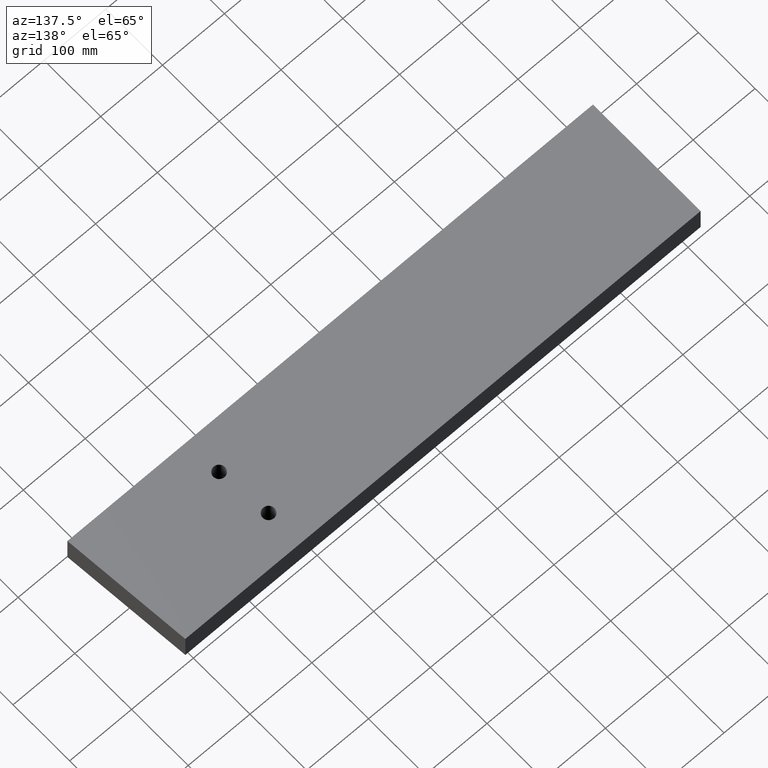
[diagram: clean part render]
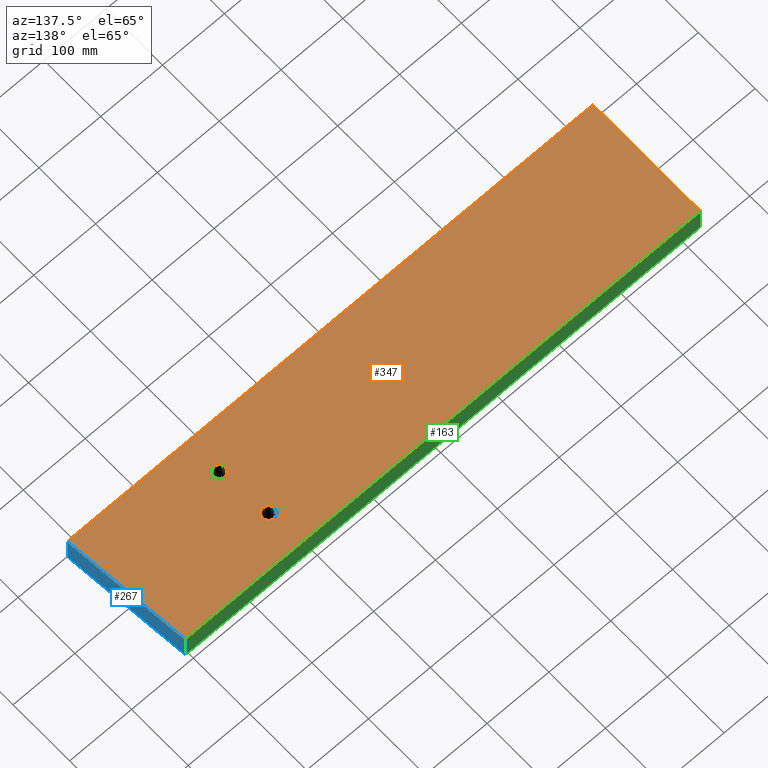
[diagram: same view with three faces highlighted in distinct colors, each labeled with its STEP entity id]
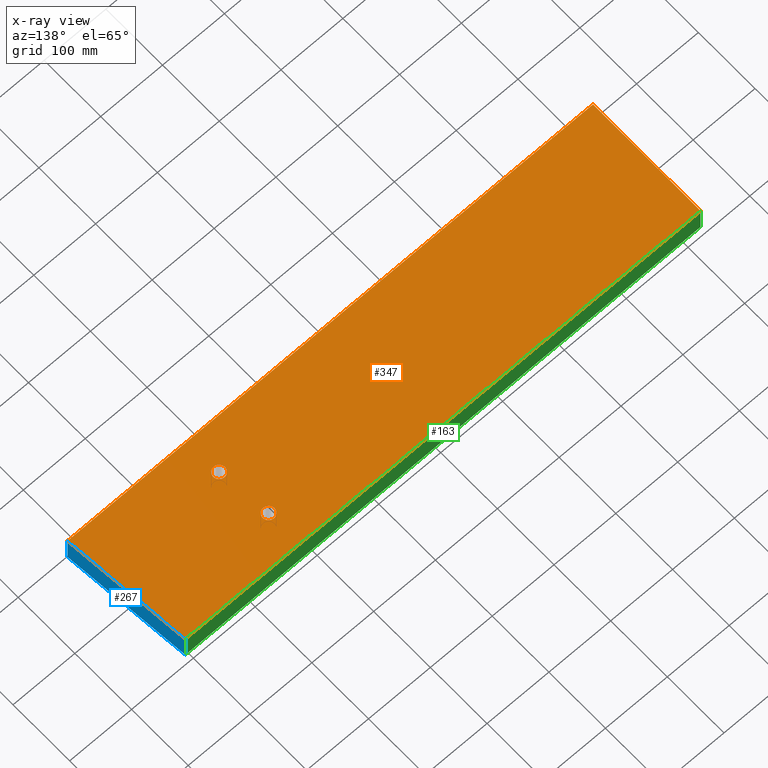
[diagram: x-ray of the same camera — body ghosted, the three highlighted faces saturated]
A machine part, auxiliary view with three faces highlighted in distinct colors.
The next image is the same camera in x-ray (body ghosted, the three faces saturated) — at least one of them is partly hidden behind the body in this view.
Their STEP definitions:

[orange] entity #347 — the highlighted planar face has unit normal (0, -0, -1).
#8 = AXIS2_PLACEMENT_3D ( 'NONE', #125, #254, #250 ) ;
#11 = VECTOR ( 'NONE', #289, 1000.000000000000000 ) ;
#14 = CARTESIAN_POINT ( 'NONE',  ( -425.0000000000000568, 94.99999999999998579, 22.49999999999963052 ) ) ;
#16 = DIRECTION ( 'NONE',  ( -5.843279076974508523E-16, 1.000000000000000000, -3.816391647148975608E-15 ) ) ;
#23 = CIRCLE ( 'NONE', #326, 9.499999999999980460 ) ;
#31 = ORIENTED_EDGE ( 'NONE', *, *, #356, .F. ) ;
#38 = AXIS2_PLACEMENT_3D ( 'NONE', #215, #85, #354 ) ;
#42 = VERTEX_POINT ( 'NONE', #75 ) ;
#50 = DIRECTION ( 'NONE',  ( 0.000000000000000000, 1.000000000000000000, -3.816391647148975608E-15 ) ) ;
#56 = CARTESIAN_POINT ( 'NONE',  ( -424.9999999999999432, -95.00000000000001421, 22.50000000000035527 ) ) ;
#62 = EDGE_CURVE ( 'NONE', #251, #244, #165, .T. ) ;
#70 = EDGE_CURVE ( 'NONE', #219, #366, #196, .T. ) ;
#75 = CARTESIAN_POINT ( 'NONE',  ( 425.0000000000000568, -94.99999999999974420, 22.50000000000035527 ) ) ;
#85 = DIRECTION ( 'NONE',  ( -0.000000000000000000, -0.000000000000000000, 1.000000000000000000 ) ) ;
#87 = EDGE_CURVE ( 'NONE', #244, #296, #177, .T. ) ;
#88 = ORIENTED_EDGE ( 'NONE', *, *, #87, .F. ) ;
#96 = ORIENTED_EDGE ( 'NONE', *, *, #172, .F. ) ;
#97 = DIRECTION ( 'NONE',  ( -0.000000000000000000, -0.000000000000000000, 1.000000000000000000 ) ) ;
#100 = CARTESIAN_POINT ( 'NONE',  ( 220.6748066749439943, -39.84778792366971345, 22.49999999999999645 ) ) ;
#107 = LINE ( 'NONE', #284, #11 ) ;
#117 = DIRECTION ( 'NONE',  ( 1.000000000000000000, 3.061616997868382648E-16, -0.000000000000000000 ) ) ;
#122 = CIRCLE ( 'NONE', #8, 9.499999999999980460 ) ;
#125 = CARTESIAN_POINT ( 'NONE',  ( 223.2023472551318264, 39.84778792366994793, 22.49999999999999645 ) ) ;
#126 = CARTESIAN_POINT ( 'NONE',  ( -424.9999999999999432, -95.00000000000001421, 22.50000000000035527 ) ) ;
#128 = AXIS2_PLACEMENT_3D ( 'NONE', #146, #351, #295 ) ;
#143 = DIRECTION ( 'NONE',  ( 1.000000000000000000, 3.061616997868382648E-16, -0.000000000000000000 ) ) ;
#146 = CARTESIAN_POINT ( 'NONE',  ( 230.1748066749439658, -39.84778792366971345, 22.49999999999999645 ) ) ;
#152 = VERTEX_POINT ( 'NONE', #365 ) ;
#165 = LINE ( 'NONE', #318, #173 ) ;
#172 = EDGE_CURVE ( 'NONE', #152, #259, #208, .T. ) ;
#173 = VECTOR ( 'NONE', #16, 1000.000000000000000 ) ;
#177 = LINE ( 'NONE', #264, #214 ) ;
#180 = EDGE_CURVE ( 'NONE', #251, #42, #294, .T. ) ;
#185 = ORIENTED_EDGE ( 'NONE', *, *, #223, .F. ) ;
#196 = CIRCLE ( 'NONE', #128, 9.499999999999980460 ) ;
#203 = AXIS2_PLACEMENT_3D ( 'NONE', #319, #383, #50 ) ;
#208 = CIRCLE ( 'NONE', #38, 9.499999999999980460 ) ;
#210 = ORIENTED_EDGE ( 'NONE', *, *, #218, .F. ) ;
#214 = VECTOR ( 'NONE', #117, 1000.000000000000000 ) ;
#215 = CARTESIAN_POINT ( 'NONE',  ( 223.2023472551318264, 39.84778792366994793, 22.49999999999999645 ) ) ;
#218 = EDGE_CURVE ( 'NONE', #259, #152, #122, .T. ) ;
#219 = VERTEX_POINT ( 'NONE', #220 ) ;
#220 = CARTESIAN_POINT ( 'NONE',  ( 239.6748066749439658, -39.84778792366971345, 22.49999999999999645 ) ) ;
#223 = EDGE_CURVE ( 'NONE', #366, #219, #23, .T. ) ;
#244 = VERTEX_POINT ( 'NONE', #14 ) ;
#250 = DIRECTION ( 'NONE',  ( 1.000000000000000000, 0.000000000000000000, 0.000000000000000000 ) ) ;
#251 = VERTEX_POINT ( 'NONE', #126 ) ;
#254 = DIRECTION ( 'NONE',  ( -0.000000000000000000, -0.000000000000000000, 1.000000000000000000 ) ) ;
#259 = VERTEX_POINT ( 'NONE', #355 ) ;
#262 = FACE_OUTER_BOUND ( 'NONE', #300, .T. ) ;
#264 = CARTESIAN_POINT ( 'NONE',  ( -425.0000000000000568, 94.99999999999998579, 22.49999999999963052 ) ) ;
#282 = CARTESIAN_POINT ( 'NONE',  ( 408.3771539300757922, 94.99999999999997158, 22.49999999999999645 ) ) ;
#283 = ORIENTED_EDGE ( 'NONE', *, *, #62, .F. ) ;
#284 = CARTESIAN_POINT ( 'NONE',  ( 408.3771539300757922, 94.99999999999997158, 22.49999999999999645 ) ) ;
#289 = DIRECTION ( 'NONE',  ( 0.08715574274765151841, -0.9961946980917461003, 0.000000000000000000 ) ) ;
#291 = FACE_BOUND ( 'NONE', #345, .T. ) ;
#294 = LINE ( 'NONE', #56, #353 ) ;
#295 = DIRECTION ( 'NONE',  ( 1.000000000000000000, 0.000000000000000000, 0.000000000000000000 ) ) ;
#296 = VERTEX_POINT ( 'NONE', #282 ) ;
#300 = EDGE_LOOP ( 'NONE', ( #336, #31, #88, #283 ) ) ;
#302 = EDGE_LOOP ( 'NONE', ( #373, #185 ) ) ;
#306 = DIRECTION ( 'NONE',  ( 1.000000000000000000, 0.000000000000000000, 0.000000000000000000 ) ) ;
#318 = CARTESIAN_POINT ( 'NONE',  ( -424.9999999999999432, -95.00000000000001421, 22.50000000000035527 ) ) ;
#319 = CARTESIAN_POINT ( 'NONE',  ( -424.9999999999999432, -95.00000000000001421, 22.50000000000035527 ) ) ;
#326 = AXIS2_PLACEMENT_3D ( 'NONE', #335, #97, #306 ) ;
#335 = CARTESIAN_POINT ( 'NONE',  ( 230.1748066749439658, -39.84778792366971345, 22.49999999999999645 ) ) ;
#336 = ORIENTED_EDGE ( 'NONE', *, *, #180, .T. ) ;
#345 = EDGE_LOOP ( 'NONE', ( #210, #96 ) ) ;
#347 = ADVANCED_FACE ( 'NONE', ( #291, #350, #262 ), #381, .F. ) ;
#350 = FACE_BOUND ( 'NONE', #302, .T. ) ;
#351 = DIRECTION ( 'NONE',  ( -0.000000000000000000, -0.000000000000000000, 1.000000000000000000 ) ) ;
#353 = VECTOR ( 'NONE', #143, 1000.000000000000000 ) ;
#354 = DIRECTION ( 'NONE',  ( 1.000000000000000000, 0.000000000000000000, 0.000000000000000000 ) ) ;
#355 = CARTESIAN_POINT ( 'NONE',  ( 232.7023472551317980, 39.84778792366994793, 22.49999999999999645 ) ) ;
#356 = EDGE_CURVE ( 'NONE', #296, #42, #107, .T. ) ;
#365 = CARTESIAN_POINT ( 'NONE',  ( 213.7023472551318548, 39.84778792366994793, 22.49999999999999645 ) ) ;
#366 = VERTEX_POINT ( 'NONE', #100 ) ;
#373 = ORIENTED_EDGE ( 'NONE', *, *, #70, .F. ) ;
#381 = PLANE ( 'NONE',  #203 ) ;
#383 = DIRECTION ( 'NONE',  ( 1.168432953743421931E-30, -3.816391647148975608E-15, -1.000000000000000000 ) ) ;

[blue] entity #267 — the highlighted planar face has unit normal (-0.9962, -0.0872, 0).
#1 = CARTESIAN_POINT ( 'NONE',  ( 408.3771539300757922, 94.99999999999997158, -22.50000000000037659 ) ) ;
#11 = VECTOR ( 'NONE', #289, 1000.000000000000000 ) ;
#32 = ORIENTED_EDGE ( 'NONE', *, *, #372, .F. ) ;
#42 = VERTEX_POINT ( 'NONE', #75 ) ;
#47 = DIRECTION ( 'NONE',  ( 0.000000000000000000, 4.009138700035287069E-15, 1.000000000000000000 ) ) ;
#48 = PLANE ( 'NONE',  #280 ) ;
#71 = CARTESIAN_POINT ( 'NONE',  ( 408.3771539300757922, 94.99999999999997158, -22.50000000000037659 ) ) ;
#72 = VERTEX_POINT ( 'NONE', #261 ) ;
#75 = CARTESIAN_POINT ( 'NONE',  ( 425.0000000000000568, -94.99999999999974420, 22.50000000000035527 ) ) ;
#79 = CARTESIAN_POINT ( 'NONE',  ( 408.3771539300757922, 94.99999999999997158, -22.50000000000037659 ) ) ;
#99 = EDGE_CURVE ( 'NONE', #72, #334, #184, .T. ) ;
#102 = DIRECTION ( 'NONE',  ( -0.9961946980917461003, -0.08715574274765151841, 0.000000000000000000 ) ) ;
#107 = LINE ( 'NONE', #284, #11 ) ;
#164 = LINE ( 'NONE', #199, #281 ) ;
#171 = LINE ( 'NONE', #71, #258 ) ;
#184 = LINE ( 'NONE', #1, #341 ) ;
#199 = CARTESIAN_POINT ( 'NONE',  ( 425.0000000000000568, -94.99999999999992895, -22.49999999999965539 ) ) ;
#202 = DIRECTION ( 'NONE',  ( 0.08715574274765151841, -0.9961946980917461003, 0.000000000000000000 ) ) ;
#229 = ORIENTED_EDGE ( 'NONE', *, *, #263, .T. ) ;
#231 = DIRECTION ( 'NONE',  ( 0.08715574274765151841, -0.9961946980917461003, 0.000000000000000000 ) ) ;
#255 = CARTESIAN_POINT ( 'NONE',  ( 425.0000000000000568, -94.99999999999974420, -22.50000000000037659 ) ) ;
#258 = VECTOR ( 'NONE', #317, 1000.000000000000000 ) ;
#261 = CARTESIAN_POINT ( 'NONE',  ( 408.3771539300757922, 94.99999999999997158, -22.50000000000037659 ) ) ;
#263 = EDGE_CURVE ( 'NONE', #72, #296, #171, .T. ) ;
#267 = ADVANCED_FACE ( 'NONE', ( #352 ), #48, .F. ) ;
#280 = AXIS2_PLACEMENT_3D ( 'NONE', #79, #102, #231 ) ;
#281 = VECTOR ( 'NONE', #47, 1000.000000000000000 ) ;
#282 = CARTESIAN_POINT ( 'NONE',  ( 408.3771539300757922, 94.99999999999997158, 22.49999999999999645 ) ) ;
#284 = CARTESIAN_POINT ( 'NONE',  ( 408.3771539300757922, 94.99999999999997158, 22.49999999999999645 ) ) ;
#285 = ORIENTED_EDGE ( 'NONE', *, *, #99, .F. ) ;
#289 = DIRECTION ( 'NONE',  ( 0.08715574274765151841, -0.9961946980917461003, 0.000000000000000000 ) ) ;
#296 = VERTEX_POINT ( 'NONE', #282 ) ;
#304 = ORIENTED_EDGE ( 'NONE', *, *, #356, .T. ) ;
#317 = DIRECTION ( 'NONE',  ( -0.000000000000000000, -0.000000000000000000, 1.000000000000000000 ) ) ;
#333 = EDGE_LOOP ( 'NONE', ( #304, #32, #285, #229 ) ) ;
#334 = VERTEX_POINT ( 'NONE', #255 ) ;
#341 = VECTOR ( 'NONE', #202, 1000.000000000000000 ) ;
#352 = FACE_OUTER_BOUND ( 'NONE', #333, .T. ) ;
#356 = EDGE_CURVE ( 'NONE', #296, #42, #107, .T. ) ;
#372 = EDGE_CURVE ( 'NONE', #334, #42, #164, .T. ) ;

[green] entity #163 — the highlighted planar face has unit normal (0, -1, 0).
#14 = CARTESIAN_POINT ( 'NONE',  ( -425.0000000000000568, 94.99999999999998579, 22.49999999999963052 ) ) ;
#22 = DIRECTION ( 'NONE',  ( -0.000000000000000000, -4.009138700035287069E-15, -1.000000000000000000 ) ) ;
#35 = EDGE_CURVE ( 'NONE', #244, #178, #312, .T. ) ;
#54 = CARTESIAN_POINT ( 'NONE',  ( -425.0000000000000568, 94.99999999999980105, -22.50000000000038014 ) ) ;
#58 = DIRECTION ( 'NONE',  ( 0.000000000000000000, -4.009138700035287069E-15, -1.000000000000000000 ) ) ;
#71 = CARTESIAN_POINT ( 'NONE',  ( 408.3771539300757922, 94.99999999999997158, -22.50000000000037659 ) ) ;
#72 = VERTEX_POINT ( 'NONE', #261 ) ;
#87 = EDGE_CURVE ( 'NONE', #244, #296, #177, .T. ) ;
#89 = DIRECTION ( 'NONE',  ( 3.061616997868382648E-16, -1.000000000000000000, 4.009138700035287069E-15 ) ) ;
#101 = ORIENTED_EDGE ( 'NONE', *, *, #263, .F. ) ;
#109 = FACE_OUTER_BOUND ( 'NONE', #224, .T. ) ;
#117 = DIRECTION ( 'NONE',  ( 1.000000000000000000, 3.061616997868382648E-16, -0.000000000000000000 ) ) ;
#121 = VECTOR ( 'NONE', #22, 1000.000000000000000 ) ;
#129 = ORIENTED_EDGE ( 'NONE', *, *, #87, .T. ) ;
#149 = ORIENTED_EDGE ( 'NONE', *, *, #298, .F. ) ;
#155 = CARTESIAN_POINT ( 'NONE',  ( -425.0000000000000568, 94.99999999999980105, -22.50000000000038014 ) ) ;
#158 = ORIENTED_EDGE ( 'NONE', *, *, #35, .F. ) ;
#163 = ADVANCED_FACE ( 'NONE', ( #109 ), #182, .F. ) ;
#171 = LINE ( 'NONE', #71, #258 ) ;
#175 = CARTESIAN_POINT ( 'NONE',  ( -425.0000000000000568, 94.99999999999980105, -22.50000000000038014 ) ) ;
#177 = LINE ( 'NONE', #264, #214 ) ;
#178 = VERTEX_POINT ( 'NONE', #175 ) ;
#181 = AXIS2_PLACEMENT_3D ( 'NONE', #235, #89, #58 ) ;
#182 = PLANE ( 'NONE',  #181 ) ;
#214 = VECTOR ( 'NONE', #117, 1000.000000000000000 ) ;
#224 = EDGE_LOOP ( 'NONE', ( #129, #101, #149, #158 ) ) ;
#235 = CARTESIAN_POINT ( 'NONE',  ( -425.0000000000000568, 94.99999999999980105, -22.50000000000038014 ) ) ;
#236 = LINE ( 'NONE', #54, #240 ) ;
#240 = VECTOR ( 'NONE', #323, 1000.000000000000000 ) ;
#244 = VERTEX_POINT ( 'NONE', #14 ) ;
#258 = VECTOR ( 'NONE', #317, 1000.000000000000000 ) ;
#261 = CARTESIAN_POINT ( 'NONE',  ( 408.3771539300757922, 94.99999999999997158, -22.50000000000037659 ) ) ;
#263 = EDGE_CURVE ( 'NONE', #72, #296, #171, .T. ) ;
#264 = CARTESIAN_POINT ( 'NONE',  ( -425.0000000000000568, 94.99999999999998579, 22.49999999999963052 ) ) ;
#282 = CARTESIAN_POINT ( 'NONE',  ( 408.3771539300757922, 94.99999999999997158, 22.49999999999999645 ) ) ;
#296 = VERTEX_POINT ( 'NONE', #282 ) ;
#298 = EDGE_CURVE ( 'NONE', #178, #72, #236, .T. ) ;
#312 = LINE ( 'NONE', #155, #121 ) ;
#317 = DIRECTION ( 'NONE',  ( -0.000000000000000000, -0.000000000000000000, 1.000000000000000000 ) ) ;
#323 = DIRECTION ( 'NONE',  ( 1.000000000000000000, 3.061616997868382648E-16, -0.000000000000000000 ) ) ;